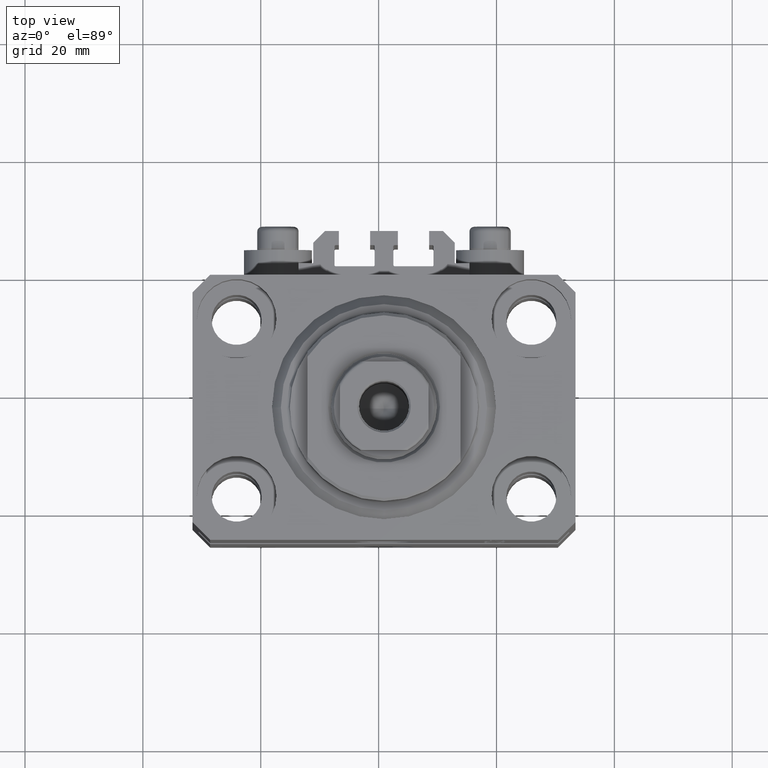
[diagram: clean part render]
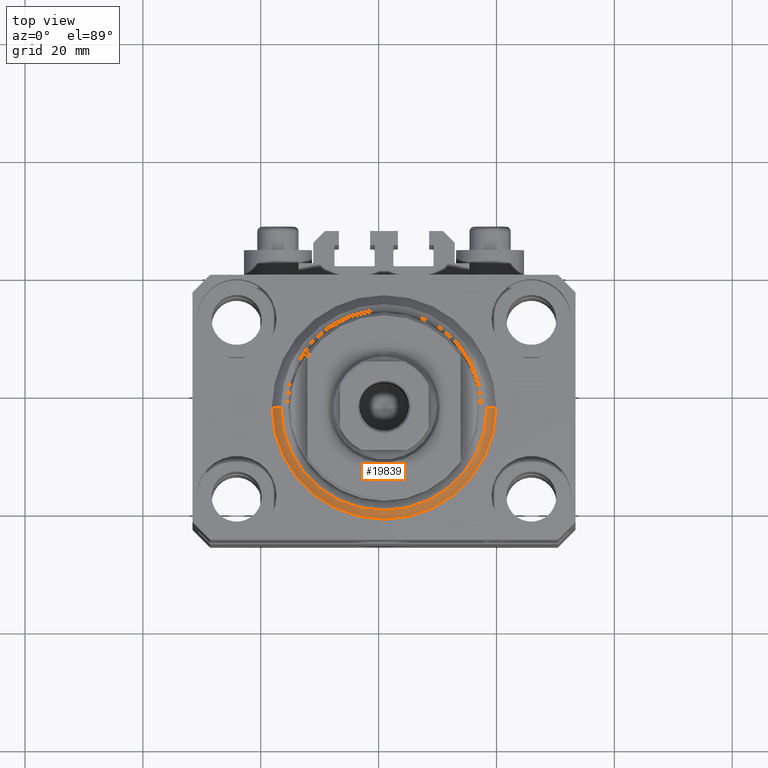
[diagram: same view with one face highlighted and labeled with its STEP entity id]
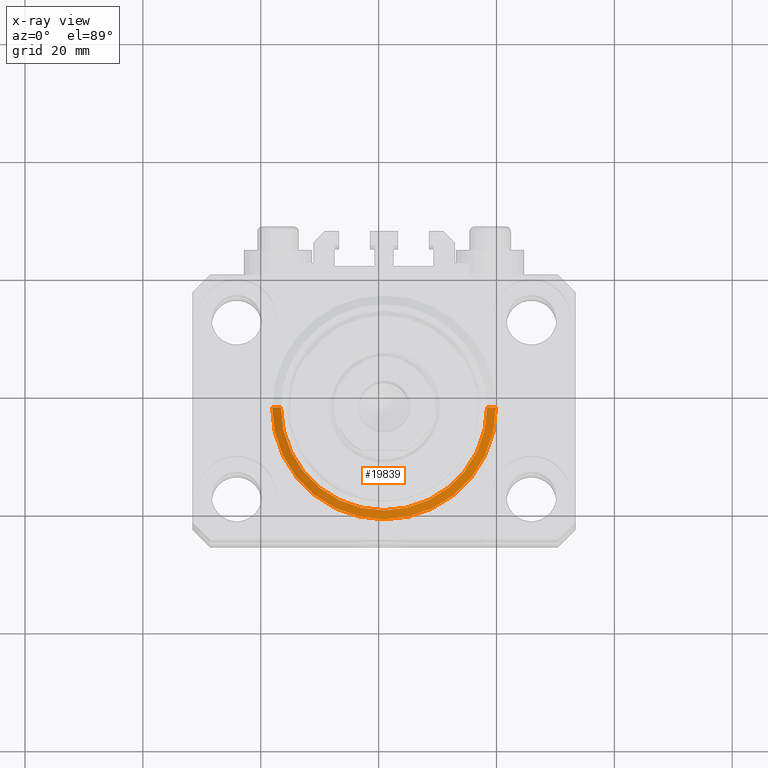
[diagram: x-ray of the same camera — body ghosted, the highlighted face saturated]
A machine part, top view. The second image highlights one B-rep face of the part: STEP entity #19839.
The next image is the same camera in x-ray: the body ghosted, the highlighted face saturated — about 0% of this face is hidden behind the body in this view.
In plain terms, the highlighted conical surface has half-angle 45 deg.
Its self-contained STEP definition (entity closure, byte-faithful):
#98 = DIRECTION ( 'NONE',  ( -0.000000000000000000, -0.000000000000000000, 1.000000000000000000 ) ) ;
#3267 = CONICAL_SURFACE ( 'NONE', #32524, 19.00000000000000000, 0.7853981633974492782 ) ;
#3831 = VERTEX_POINT ( 'NONE', #10178 ) ;
#4153 = CARTESIAN_POINT ( 'NONE',  ( 0.000000000000000000, 0.000000000000000000, 0.000000000000000000 ) ) ;
#4869 = CARTESIAN_POINT ( 'NONE',  ( 17.49999999999999645, 0.000000000000000000, 0.000000000000000000 ) ) ;
#6150 = DIRECTION ( 'NONE',  ( 0.7071067811865483499, 0.000000000000000000, 0.7071067811865467956 ) ) ;
#6349 = CARTESIAN_POINT ( 'NONE',  ( -19.00000000000000000, 2.326828918379970970E-15, 1.500000000000001332 ) ) ;
#6816 = LINE ( 'NONE', #6349, #44889 ) ;
#8406 = EDGE_LOOP ( 'NONE', ( #12465, #30813, #33649, #41127 ) ) ;
#8453 = EDGE_CURVE ( 'NONE', #13604, #44941, #29197, .T. ) ;
#9292 = CIRCLE ( 'NONE', #32362, 19.00000000000000000 ) ;
#10178 = CARTESIAN_POINT ( 'NONE',  ( 19.00000000000000000, 2.326828918379970970E-15, 1.500000000000001332 ) ) ;
#11623 = EDGE_CURVE ( 'NONE', #13604, #3831, #24475, .T. ) ;
#11941 = DIRECTION ( 'NONE',  ( 1.000000000000000000, 0.000000000000000000, 0.000000000000000000 ) ) ;
#12465 = ORIENTED_EDGE ( 'NONE', *, *, #20029, .F. ) ;
#13604 = VERTEX_POINT ( 'NONE', #4869 ) ;
#15268 = DIRECTION ( 'NONE',  ( 1.000000000000000000, 0.000000000000000000, 0.000000000000000000 ) ) ;
#18694 = CARTESIAN_POINT ( 'NONE',  ( 0.000000000000000000, 0.000000000000000000, 1.500000000000001332 ) ) ;
#19839 = ADVANCED_FACE ( 'NONE', ( #29777 ), #3267, .T. ) ;
#20029 = EDGE_CURVE ( 'NONE', #44941, #47245, #6816, .T. ) ;
#21310 = DIRECTION ( 'NONE',  ( -0.7071067811865483499, 8.659560562354942719E-17, 0.7071067811865467956 ) ) ;
#21385 = DIRECTION ( 'NONE',  ( -0.000000000000000000, -0.000000000000000000, 1.000000000000000000 ) ) ;
#21829 = CARTESIAN_POINT ( 'NONE',  ( -19.00000000000000000, 0.000000000000000000, 1.500000000000001332 ) ) ;
#24475 = LINE ( 'NONE', #39186, #43179 ) ;
#29197 = CIRCLE ( 'NONE', #35364, 17.49999999999999645 ) ;
#29777 = FACE_OUTER_BOUND ( 'NONE', #8406, .T. ) ;
#29893 = EDGE_CURVE ( 'NONE', #47245, #3831, #9292, .T. ) ;
#30813 = ORIENTED_EDGE ( 'NONE', *, *, #8453, .F. ) ;
#31982 = DIRECTION ( 'NONE',  ( 1.000000000000000000, 0.000000000000000000, 0.000000000000000000 ) ) ;
#32362 = AXIS2_PLACEMENT_3D ( 'NONE', #32685, #21385, #31982 ) ;
#32524 = AXIS2_PLACEMENT_3D ( 'NONE', #18694, #98, #11941 ) ;
#32685 = CARTESIAN_POINT ( 'NONE',  ( 0.000000000000000000, 0.000000000000000000, 1.500000000000001332 ) ) ;
#33572 = DIRECTION ( 'NONE',  ( -0.000000000000000000, -0.000000000000000000, -1.000000000000000000 ) ) ;
#33649 = ORIENTED_EDGE ( 'NONE', *, *, #11623, .T. ) ;
#35364 = AXIS2_PLACEMENT_3D ( 'NONE', #4153, #33572, #15268 ) ;
#39186 = CARTESIAN_POINT ( 'NONE',  ( 19.00000000000000000, 0.000000000000000000, 1.500000000000001332 ) ) ;
#41127 = ORIENTED_EDGE ( 'NONE', *, *, #29893, .F. ) ;
#42061 = CARTESIAN_POINT ( 'NONE',  ( -17.49999999999999645, 2.234980408443919215E-15, 0.000000000000000000 ) ) ;
#43179 = VECTOR ( 'NONE', #6150, 1000.000000000000000 ) ;
#44889 = VECTOR ( 'NONE', #21310, 1000.000000000000000 ) ;
#44941 = VERTEX_POINT ( 'NONE', #42061 ) ;
#47245 = VERTEX_POINT ( 'NONE', #21829 ) ;